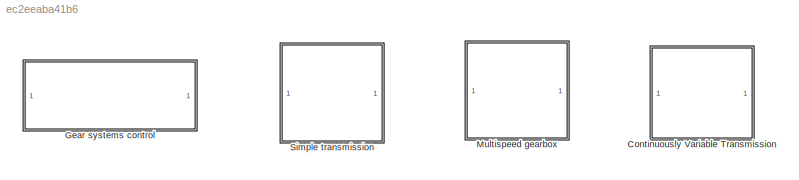
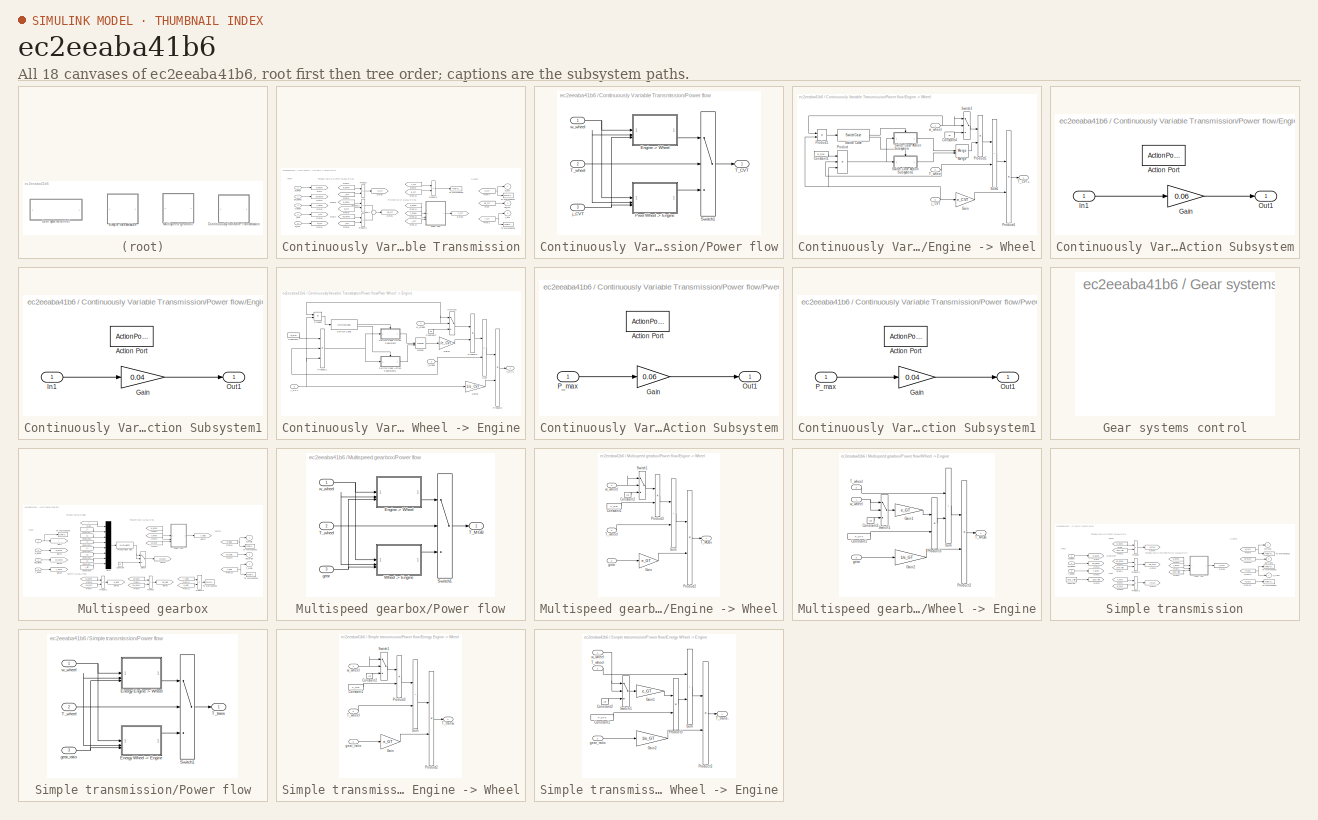
[diagram: thumbnail index - all 18 canvases of the model, root first then tree order]
MODEL slx_ec2eeaba41b6
KIND library
CONFIG AbsTol = auto
CONFIG EnableMultiTasking = off
CONFIG FixedStep = auto
CONFIG MaxStep = auto
CONFIG MinStep = auto
CONFIG RelTol = 1e-3
CONFIG SampleTimeConstraint = Unconstrained
CONFIG SolverName = VariableStepAuto
CONFIG StartTime = 0.0
CONFIG StopTime = 10.0
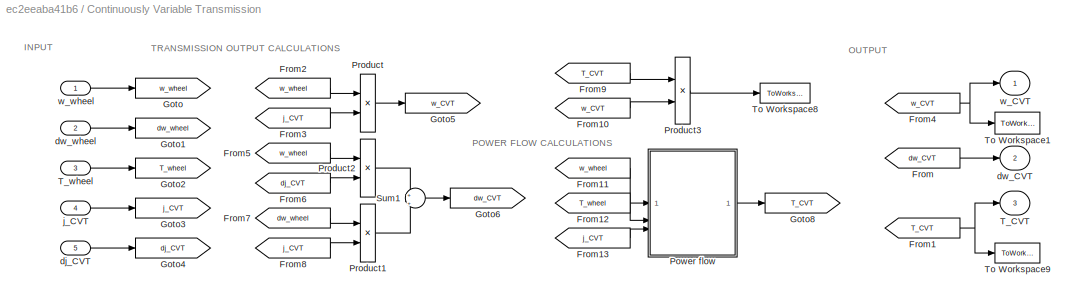
BLOCK [SubSystem] Continuously Variable Transmission
  Tag = cvt
BLOCK [From] Continuously Variable Transmission/From
  GotoTag = dw_CVT
BLOCK [From] Continuously Variable Transmission/From1
  GotoTag = T_CVT
BLOCK [From] Continuously Variable Transmission/From10
  GotoTag = w_CVT
BLOCK [From] Continuously Variable Transmission/From11
  GotoTag = w_wheel
BLOCK [From] Continuously Variable Transmission/From12
  GotoTag = T_wheel
BLOCK [From] Continuously Variable Transmission/From13
  GotoTag = j_CVT
BLOCK [From] Continuously Variable Transmission/From2
  GotoTag = w_wheel
BLOCK [From] Continuously Variable Transmission/From3
  GotoTag = j_CVT
BLOCK [From] Continuously Variable Transmission/From4
  GotoTag = w_CVT
BLOCK [From] Continuously Variable Transmission/From5
  GotoTag = w_wheel
BLOCK [From] Continuously Variable Transmission/From6
  GotoTag = dj_CVT
BLOCK [From] Continuously Variable Transmission/From7
  GotoTag = dw_wheel
BLOCK [From] Continuously Variable Transmission/From8
  GotoTag = j_CVT
BLOCK [From] Continuously Variable Transmission/From9
  GotoTag = T_CVT
BLOCK [Goto] Continuously Variable Transmission/Goto
  GotoTag = w_wheel
BLOCK [Goto] Continuously Variable Transmission/Goto1
  GotoTag = dw_wheel
BLOCK [Goto] Continuously Variable Transmission/Goto2
  GotoTag = T_wheel
BLOCK [Goto] Continuously Variable Transmission/Goto3
  GotoTag = j_CVT
BLOCK [Goto] Continuously Variable Transmission/Goto4
  GotoTag = dj_CVT
BLOCK [Goto] Continuously Variable Transmission/Goto5
  GotoTag = w_CVT
BLOCK [Goto] Continuously Variable Transmission/Goto6
  GotoTag = dw_CVT
BLOCK [Goto] Continuously Variable Transmission/Goto8
  GotoTag = T_CVT
BLOCK [SubSystem] Continuously Variable Transmission/Power flow
BLOCK [SubSystem] Continuously Variable Transmission/Power flow/Engine -> Wheel
BLOCK [Constant] Continuously Variable Transmission/Power flow/Engine -> Wheel/Constant1
  Value = w_max
BLOCK [Constant] Continuously Variable Transmission/Power flow/Engine -> Wheel/Constant4
  Value = inf
BLOCK [Gain] Continuously Variable Transmission/Power flow/Engine -> Wheel/Gain
  Gain = e_CVT
  OutDataTypeStr = Inherit: Same as input
  ParamDataTypeStr = Inherit: Same as input
  SaturateOnIntegerOverflow = on
BLOCK [Merge] Continuously Variable Transmission/Power flow/Engine -> Wheel/Merge
BLOCK [Product] Continuously Variable Transmission/Power flow/Engine -> Wheel/Product
  Inputs = **/
BLOCK [Product] Continuously Variable Transmission/Power flow/Engine -> Wheel/Product1
BLOCK [Product] Continuously Variable Transmission/Power flow/Engine -> Wheel/Product4
  InputSameDT = on
  Inputs = */
  OutDataTypeStr = Inherit: Same as first input
  RndMeth = Zero
  SaturateOnIntegerOverflow = on
BLOCK [Product] Continuously Variable Transmission/Power flow/Engine -> Wheel/Product5
  InputSameDT = on
  Inputs = /*
  OutDataTypeStr = Inherit: Same as first input
  RndMeth = Zero
  SaturateOnIntegerOverflow = on
BLOCK [Sum] Continuously Variable Transmission/Power flow/Engine -> Wheel/Sum1
  IconShape = rectangular
  InputSameDT = on
  OutDataTypeStr = Inherit: Same as first input
  SaturateOnIntegerOverflow = on
BLOCK [SwitchCase] Continuously Variable Transmission/Power flow/Engine -> Wheel/Switch Case
  CaseConditions = {floor(0.5*w_max)}
BLOCK [SubSystem] Continuously Variable Transmission/Power flow/Engine -> Wheel/Switch Case Action Subsystem
  TreatAsAtomicUnit = on
BLOCK [ActionPort] Continuously Variable Transmission/Power flow/Engine -> Wheel/Switch Case Action Subsystem/Action Port
BLOCK [Gain] Continuously Variable Transmission/Power flow/Engine -> Wheel/Switch Case Action Subsystem/Gain
  Gain = 0.06
BLOCK [Inport] Continuously Variable Transmission/Power flow/Engine -> Wheel/Switch Case Action Subsystem/In1
BLOCK [Outport] Continuously Variable Transmission/Power flow/Engine -> Wheel/Switch Case Action Subsystem/Out1
BLOCK [SubSystem] Continuously Variable Transmission/Power flow/Engine -> Wheel/Switch Case Action Subsystem1
  TreatAsAtomicUnit = on
BLOCK [ActionPort] Continuously Variable Transmission/Power flow/Engine -> Wheel/Switch Case Action Subsystem1/Action Port
BLOCK [Gain] Continuously Variable Transmission/Power flow/Engine -> Wheel/Switch Case Action Subsystem1/Gain
  Gain = 0.04
BLOCK [Inport] Continuously Variable Transmission/Power flow/Engine -> Wheel/Switch Case Action Subsystem1/In1
BLOCK [Outport] Continuously Variable Transmission/Power flow/Engine -> Wheel/Switch Case Action Subsystem1/Out1
BLOCK [Switch] Continuously Variable Transmission/Power flow/Engine -> Wheel/Switch2
  Threshold = w_wheel_min
BLOCK [Outport] Continuously Variable Transmission/Power flow/Engine -> Wheel/T_CVT+
  InitialOutput = 0
BLOCK [Inport] Continuously Variable Transmission/Power flow/Engine -> Wheel/T_wheel
  Port = 2
BLOCK [Inport] Continuously Variable Transmission/Power flow/Engine -> Wheel/j_CVT
  Port = 3
BLOCK [Inport] Continuously Variable Transmission/Power flow/Engine -> Wheel/w_wheel
BLOCK [SubSystem] Continuously Variable Transmission/Power flow/Pwer Wheel -> Engine
BLOCK [Constant] Continuously Variable Transmission/Power flow/Pwer Wheel -> Engine/Constant2
  Value = inf
BLOCK [Constant] Continuously Variable Transmission/Power flow/Pwer Wheel -> Engine/Constant3
  Value = w_max
BLOCK [Gain] Continuously Variable Transmission/Power flow/Pwer Wheel -> Engine/Gain1
  Gain = 1/e_CVT
  OutDataTypeStr = Inherit: Same as input
  ParamDataTypeStr = Inherit: Same as input
  SaturateOnIntegerOverflow = on
BLOCK [Gain] Continuously Variable Transmission/Power flow/Pwer Wheel -> Engine/Gain2
  Gain = 1/e_CVT
  OutDataTypeStr = Inherit: Same as input
  ParamDataTypeStr = Inherit: Same as input
  SaturateOnIntegerOverflow = on
BLOCK [Merge] Continuously Variable Transmission/Power flow/Pwer Wheel -> Engine/Merge
BLOCK [Product] Continuously Variable Transmission/Power flow/Pwer Wheel -> Engine/Product
BLOCK [Product] Continuously Variable Transmission/Power flow/Pwer Wheel -> Engine/Product1
  InputSameDT = on
  Inputs = **/
  OutDataTypeStr = Inherit: Same as first input
  RndMeth = Zero
  SaturateOnIntegerOverflow = on
BLOCK [Product] Continuously Variable Transmission/Power flow/Pwer Wheel -> Engine/Product2
  InputSameDT = on
  Inputs = */
  OutDataTypeStr = Inherit: Same as first input
  RndMeth = Zero
  SaturateOnIntegerOverflow = on
BLOCK [Product] Continuously Variable Transmission/Power flow/Pwer Wheel -> Engine/Product3
  InputSameDT = on
  Inputs = /*
  OutDataTypeStr = Inherit: Same as first input
  RndMeth = Zero
  SaturateOnIntegerOverflow = on
BLOCK [Sum] Continuously Variable Transmission/Power flow/Pwer Wheel -> Engine/Sum
  IconShape = rectangular
  InputSameDT = on
  Inputs = -+
  OutDataTypeStr = Inherit: Same as first input
  SaturateOnIntegerOverflow = on
BLOCK [SwitchCase] Continuously Variable Transmission/Power flow/Pwer Wheel -> Engine/Switch Case
  CaseConditions = {floor(0.5*w_max)}
BLOCK [SubSystem] Continuously Variable Transmission/Power flow/Pwer Wheel -> Engine/Switch Case Action Subsystem
  TreatAsAtomicUnit = on
BLOCK [ActionPort] Continuously Variable Transmission/Power flow/Pwer Wheel -> Engine/Switch Case Action Subsystem/Action Port
  ActionPortLabel = case [ 50 ]:
BLOCK [Gain] Continuously Variable Transmission/Power flow/Pwer Wheel -> Engine/Switch Case Action Subsystem/Gain
  Gain = 0.06
BLOCK [Outport] Continuously Variable Transmission/Power flow/Pwer Wheel -> Engine/Switch Case Action Subsystem/Out1
BLOCK [Inport] Continuously Variable Transmission/Power flow/Pwer Wheel -> Engine/Switch Case Action Subsystem/P_max
BLOCK [SubSystem] Continuously Variable Transmission/Power flow/Pwer Wheel -> Engine/Switch Case Action Subsystem1
  TreatAsAtomicUnit = on
BLOCK [ActionPort] Continuously Variable Transmission/Power flow/Pwer Wheel -> Engine/Switch Case Action Subsystem1/Action Port
BLOCK [Gain] Continuously Variable Transmission/Power flow/Pwer Wheel -> Engine/Switch Case Action Subsystem1/Gain
  Gain = 0.04
BLOCK [Outport] Continuously Variable Transmission/Power flow/Pwer Wheel -> Engine/Switch Case Action Subsystem1/Out1
BLOCK [Inport] Continuously Variable Transmission/Power flow/Pwer Wheel -> Engine/Switch Case Action Subsystem1/P_max
BLOCK [Switch] Continuously Variable Transmission/Power flow/Pwer Wheel -> Engine/Switch1
  Threshold = w_wheel_min
BLOCK [Outport] Continuously Variable Transmission/Power flow/Pwer Wheel -> Engine/T_CVT-
  InitialOutput = 0
BLOCK [Inport] Continuously Variable Transmission/Power flow/Pwer Wheel -> Engine/T_wheel
  Port = 2
BLOCK [Inport] Continuously Variable Transmission/Power flow/Pwer Wheel -> Engine/j_CVT
  Port = 3
BLOCK [Inport] Continuously Variable Transmission/Power flow/Pwer Wheel -> Engine/w_wheel
BLOCK [Switch] Continuously Variable Transmission/Power flow/Switch1
BLOCK [Outport] Continuously Variable Transmission/Power flow/T_CVT
  InitialOutput = 0
BLOCK [Inport] Continuously Variable Transmission/Power flow/T_wheel
  Port = 2
BLOCK [Inport] Continuously Variable Transmission/Power flow/j_CVT
  Port = 3
BLOCK [Inport] Continuously Variable Transmission/Power flow/w_wheel
BLOCK [Product] Continuously Variable Transmission/Product
  InputSameDT = on
  OutDataTypeStr = Inherit: Same as first input
  RndMeth = Zero
  SaturateOnIntegerOverflow = on
BLOCK [Product] Continuously Variable Transmission/Product1
  InputSameDT = on
  OutDataTypeStr = Inherit: Same as first input
  RndMeth = Zero
  SaturateOnIntegerOverflow = on
BLOCK [Product] Continuously Variable Transmission/Product2
  InputSameDT = on
  OutDataTypeStr = Inherit: Same as first input
  RndMeth = Zero
  SaturateOnIntegerOverflow = on
BLOCK [Product] Continuously Variable Transmission/Product3
  InputSameDT = on
  OutDataTypeStr = Inherit: Same as first input
  RndMeth = Zero
  SaturateOnIntegerOverflow = on
BLOCK [Sum] Continuously Variable Transmission/Sum1
  Inputs = +|+
BLOCK [Outport] Continuously Variable Transmission/T_CVT
  InitialOutput = 0
  Port = 3
BLOCK [Inport] Continuously Variable Transmission/T_wheel
  Port = 3
BLOCK [ToWorkspace] Continuously Variable Transmission/To Workspace1
  MaxDataPoints = inf
  NameLocation = top
  SampleTime = -1
  VariableName = w_CVT
BLOCK [ToWorkspace] Continuously Variable Transmission/To Workspace8
  MaxDataPoints = inf
  NameLocation = top
  SampleTime = -1
  VariableName = P_CVT
BLOCK [ToWorkspace] Continuously Variable Transmission/To Workspace9
  MaxDataPoints = inf
  NameLocation = top
  SampleTime = -1
  VariableName = T_CVT
BLOCK [Inport] Continuously Variable Transmission/dj_CVT
  Port = 5
BLOCK [Outport] Continuously Variable Transmission/dw_CVT
  InitialOutput = 0
  Port = 2
BLOCK [Inport] Continuously Variable Transmission/dw_wheel
  Port = 2
BLOCK [Inport] Continuously Variable Transmission/j_CVT
  Port = 4
BLOCK [Outport] Continuously Variable Transmission/w_CVT
  InitialOutput = 0
BLOCK [Inport] Continuously Variable Transmission/w_wheel
BLOCK [SubSystem] Gear systems control
  OpenFcn = GearSystemsControl
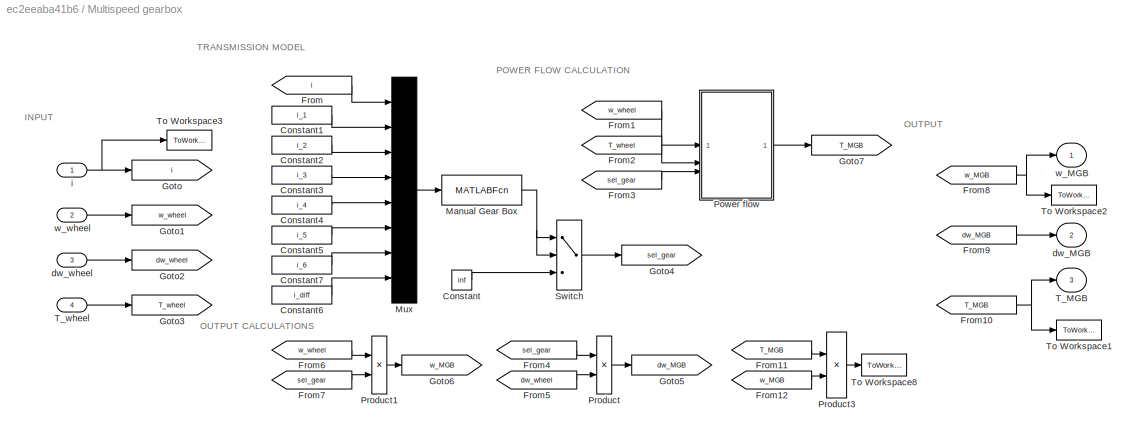
BLOCK [SubSystem] Multispeed gearbox
  Tag = transmission
BLOCK [Constant] Multispeed gearbox/Constant
  Value = inf
BLOCK [Constant] Multispeed gearbox/Constant1
  Value = i_1
BLOCK [Constant] Multispeed gearbox/Constant2
  Value = i_2
BLOCK [Constant] Multispeed gearbox/Constant3
  Value = i_3
BLOCK [Constant] Multispeed gearbox/Constant4
  Value = i_4
BLOCK [Constant] Multispeed gearbox/Constant5
  Value = i_5
BLOCK [Constant] Multispeed gearbox/Constant6
  Value = i_diff
BLOCK [Constant] Multispeed gearbox/Constant7
  Value = i_6
BLOCK [From] Multispeed gearbox/From
  GotoTag = i
BLOCK [From] Multispeed gearbox/From1
  GotoTag = w_wheel
BLOCK [From] Multispeed gearbox/From10
  GotoTag = T_MGB
BLOCK [From] Multispeed gearbox/From11
  GotoTag = T_MGB
BLOCK [From] Multispeed gearbox/From12
  GotoTag = w_MGB
BLOCK [From] Multispeed gearbox/From2
  GotoTag = T_wheel
BLOCK [From] Multispeed gearbox/From3
  GotoTag = sel_gear
BLOCK [From] Multispeed gearbox/From4
  GotoTag = sel_gear
BLOCK [From] Multispeed gearbox/From5
  GotoTag = dw_wheel
BLOCK [From] Multispeed gearbox/From6
  GotoTag = w_wheel
BLOCK [From] Multispeed gearbox/From7
  GotoTag = sel_gear
BLOCK [From] Multispeed gearbox/From8
  GotoTag = w_MGB
BLOCK [From] Multispeed gearbox/From9
  GotoTag = dw_MGB
BLOCK [Goto] Multispeed gearbox/Goto
  GotoTag = i
BLOCK [Goto] Multispeed gearbox/Goto1
  GotoTag = w_wheel
BLOCK [Goto] Multispeed gearbox/Goto2
  GotoTag = dw_wheel
BLOCK [Goto] Multispeed gearbox/Goto3
  GotoTag = T_wheel
BLOCK [Goto] Multispeed gearbox/Goto4
  GotoTag = sel_gear
BLOCK [Goto] Multispeed gearbox/Goto5
  GotoTag = dw_MGB
BLOCK [Goto] Multispeed gearbox/Goto6
  GotoTag = w_MGB
BLOCK [Goto] Multispeed gearbox/Goto7
  GotoTag = T_MGB
BLOCK [MATLABFcn] Multispeed gearbox/Manual Gear Box
  MATLABFcn = manual_gearbox(u)
  OutputDimensions = 1
BLOCK [Mux] Multispeed gearbox/Mux
  Inputs = 8
BLOCK [SubSystem] Multispeed gearbox/Power flow
BLOCK [SubSystem] Multispeed gearbox/Power flow/Engine -> Wheel
BLOCK [Constant] Multispeed gearbox/Power flow/Engine -> Wheel/Constant1
  Value = P_GT0
BLOCK [Constant] Multispeed gearbox/Power flow/Engine -> Wheel/Constant2
  Value = inf
BLOCK [Gain] Multispeed gearbox/Power flow/Engine -> Wheel/Gain
  Gain = e_GT
  OutDataTypeStr = Inherit: Same as input
  ParamDataTypeStr = Inherit: Same as input
  SaturateOnIntegerOverflow = on
BLOCK [Product] Multispeed gearbox/Power flow/Engine -> Wheel/Product2
  InputSameDT = on
  Inputs = */
  OutDataTypeStr = Inherit: Same as first input
  RndMeth = Zero
  SaturateOnIntegerOverflow = on
BLOCK [Product] Multispeed gearbox/Power flow/Engine -> Wheel/Product3
  InputSameDT = on
  Inputs = /*
  OutDataTypeStr = Inherit: Same as first input
  RndMeth = Zero
  SaturateOnIntegerOverflow = on
BLOCK [Sum] Multispeed gearbox/Power flow/Engine -> Wheel/Sum
  IconShape = rectangular
  InputSameDT = on
  OutDataTypeStr = Inherit: Same as first input
  SaturateOnIntegerOverflow = on
BLOCK [Switch] Multispeed gearbox/Power flow/Engine -> Wheel/Switch1
  Threshold = w_wheel_min
BLOCK [Outport] Multispeed gearbox/Power flow/Engine -> Wheel/T_MGB+
  InitialOutput = 0
BLOCK [Inport] Multispeed gearbox/Power flow/Engine -> Wheel/T_wheel
  Port = 2
BLOCK [Inport] Multispeed gearbox/Power flow/Engine -> Wheel/gear
  Port = 3
BLOCK [Inport] Multispeed gearbox/Power flow/Engine -> Wheel/w_wheel
BLOCK [Switch] Multispeed gearbox/Power flow/Switch1
BLOCK [Outport] Multispeed gearbox/Power flow/T_MGB
  InitialOutput = 0
BLOCK [Inport] Multispeed gearbox/Power flow/T_wheel
  Port = 2
BLOCK [SubSystem] Multispeed gearbox/Power flow/Wheel -> Engine
BLOCK [Constant] Multispeed gearbox/Power flow/Wheel -> Engine/Constant1
  Value = P_GT0
BLOCK [Constant] Multispeed gearbox/Power flow/Wheel -> Engine/Constant2
  Value = inf
BLOCK [Gain] Multispeed gearbox/Power flow/Wheel -> Engine/Gain1
  Gain = e_GT
  OutDataTypeStr = Inherit: Same as input
  ParamDataTypeStr = Inherit: Same as input
  SaturateOnIntegerOverflow = on
BLOCK [Gain] Multispeed gearbox/Power flow/Wheel -> Engine/Gain2
  Gain = 1/e_GT
  OutDataTypeStr = Inherit: Same as input
  ParamDataTypeStr = Inherit: Same as input
  SaturateOnIntegerOverflow = on
BLOCK [Product] Multispeed gearbox/Power flow/Wheel -> Engine/Product2
  InputSameDT = on
  Inputs = */
  OutDataTypeStr = Inherit: Same as first input
  RndMeth = Zero
  SaturateOnIntegerOverflow = on
BLOCK [Product] Multispeed gearbox/Power flow/Wheel -> Engine/Product3
  InputSameDT = on
  Inputs = /*
  OutDataTypeStr = Inherit: Same as first input
  RndMeth = Zero
  SaturateOnIntegerOverflow = on
BLOCK [Sum] Multispeed gearbox/Power flow/Wheel -> Engine/Sum
  IconShape = rectangular
  InputSameDT = on
  OutDataTypeStr = Inherit: Same as first input
  SaturateOnIntegerOverflow = on
BLOCK [Switch] Multispeed gearbox/Power flow/Wheel -> Engine/Switch1
  Threshold = w_wheel_min
BLOCK [Outport] Multispeed gearbox/Power flow/Wheel -> Engine/T_MGB-
  InitialOutput = 0
BLOCK [Inport] Multispeed gearbox/Power flow/Wheel -> Engine/T_wheel
  Port = 2
BLOCK [Inport] Multispeed gearbox/Power flow/Wheel -> Engine/gear
  Port = 3
BLOCK [Inport] Multispeed gearbox/Power flow/Wheel -> Engine/w_wheel
BLOCK [Inport] Multispeed gearbox/Power flow/gear
  Port = 3
BLOCK [Inport] Multispeed gearbox/Power flow/w_wheel
BLOCK [Product] Multispeed gearbox/Product
  InputSameDT = on
  OutDataTypeStr = Inherit: Same as first input
  RndMeth = Zero
  SaturateOnIntegerOverflow = on
BLOCK [Product] Multispeed gearbox/Product1
  InputSameDT = on
  OutDataTypeStr = Inherit: Same as first input
  RndMeth = Zero
  SaturateOnIntegerOverflow = on
BLOCK [Product] Multispeed gearbox/Product3
  InputSameDT = on
  OutDataTypeStr = Inherit: Same as first input
  RndMeth = Zero
  SaturateOnIntegerOverflow = on
BLOCK [Switch] Multispeed gearbox/Switch
  Threshold = eps
BLOCK [Outport] Multispeed gearbox/T_MGB
  InitialOutput = 0
  Port = 3
BLOCK [Inport] Multispeed gearbox/T_wheel
  Port = 4
BLOCK [ToWorkspace] Multispeed gearbox/To Workspace1
  MaxDataPoints = inf
  NameLocation = top
  SampleTime = -1
  VariableName = T_MGB
BLOCK [ToWorkspace] Multispeed gearbox/To Workspace2
  MaxDataPoints = inf
  NameLocation = top
  SampleTime = -1
  VariableName = w_MGB
BLOCK [ToWorkspace] Multispeed gearbox/To Workspace3
  MaxDataPoints = inf
  NameLocation = top
  SampleTime = -1
  VariableName = i
BLOCK [ToWorkspace] Multispeed gearbox/To Workspace8
  MaxDataPoints = inf
  NameLocation = top
  SampleTime = -1
  VariableName = P_MGB
BLOCK [Outport] Multispeed gearbox/dw_MGB
  InitialOutput = 0
  Port = 2
BLOCK [Inport] Multispeed gearbox/dw_wheel
  Port = 3
BLOCK [Inport] Multispeed gearbox/i
BLOCK [Outport] Multispeed gearbox/w_MGB
  InitialOutput = 0
BLOCK [Inport] Multispeed gearbox/w_wheel
  Port = 2
BLOCK [SubSystem] Simple transmission
BLOCK [Constant] Simple transmission/Constant
  Value = gear_ratio
BLOCK [From] Simple transmission/From
  GotoTag = w_wheel
BLOCK [From] Simple transmission/From1
  GotoTag = T_wheel
BLOCK [From] Simple transmission/From10
  GotoTag = P_trans
BLOCK [From] Simple transmission/From11
  GotoTag = T_trans
BLOCK [From] Simple transmission/From12
  GotoTag = dw_trans
BLOCK [From] Simple transmission/From2
  GotoTag = gearratio
BLOCK [From] Simple transmission/From3
  GotoTag = dw_wheel
BLOCK [From] Simple transmission/From4
  GotoTag = gearratio
BLOCK [From] Simple transmission/From5
  GotoTag = w_wheel
BLOCK [From] Simple transmission/From6
  GotoTag = gearratio
BLOCK [From] Simple transmission/From7
  GotoTag = T_trans
BLOCK [From] Simple transmission/From8
  GotoTag = w_trans
BLOCK [From] Simple transmission/From9
  GotoTag = w_trans
BLOCK [Goto] Simple transmission/Goto
  GotoTag = w_wheel
BLOCK [Goto] Simple transmission/Goto1
  GotoTag = dw_wheel
BLOCK [Goto] Simple transmission/Goto2
  GotoTag = T_wheel
BLOCK [Goto] Simple transmission/Goto3
  GotoTag = gearratio
BLOCK [Goto] Simple transmission/Goto4
  GotoTag = w_trans
BLOCK [Goto] Simple transmission/Goto5
  GotoTag = dw_trans
BLOCK [Goto] Simple transmission/Goto6
  GotoTag = T_trans
BLOCK [Goto] Simple transmission/Goto7
  GotoTag = P_trans
BLOCK [SubSystem] Simple transmission/Power flow
BLOCK [SubSystem] Simple transmission/Power flow/Energy Engine -> Wheel
BLOCK [Constant] Simple transmission/Power flow/Energy Engine -> Wheel/Constant1
  Value = P_GT0
BLOCK [Constant] Simple transmission/Power flow/Energy Engine -> Wheel/Constant2
  Value = inf
BLOCK [Gain] Simple transmission/Power flow/Energy Engine -> Wheel/Gain
  Gain = e_GT
  OutDataTypeStr = Inherit: Same as input
  ParamDataTypeStr = Inherit: Same as input
  SaturateOnIntegerOverflow = on
BLOCK [Product] Simple transmission/Power flow/Energy Engine -> Wheel/Product2
  InputSameDT = on
  Inputs = */
  OutDataTypeStr = Inherit: Same as first input
  RndMeth = Zero
  SaturateOnIntegerOverflow = on
BLOCK [Product] Simple transmission/Power flow/Energy Engine -> Wheel/Product3
  InputSameDT = on
  Inputs = /*
  OutDataTypeStr = Inherit: Same as first input
  RndMeth = Zero
  SaturateOnIntegerOverflow = on
BLOCK [Sum] Simple transmission/Power flow/Energy Engine -> Wheel/Sum
  IconShape = rectangular
  InputSameDT = on
  OutDataTypeStr = Inherit: Same as first input
  SaturateOnIntegerOverflow = on
BLOCK [Switch] Simple transmission/Power flow/Energy Engine -> Wheel/Switch1
  Threshold = w_wheel_min
BLOCK [Outport] Simple transmission/Power flow/Energy Engine -> Wheel/T_trans+
  InitialOutput = 0
BLOCK [Inport] Simple transmission/Power flow/Energy Engine -> Wheel/T_wheel
  Port = 2
BLOCK [Inport] Simple transmission/Power flow/Energy Engine -> Wheel/gear_ratio
  Port = 3
BLOCK [Inport] Simple transmission/Power flow/Energy Engine -> Wheel/w_wheel
BLOCK [SubSystem] Simple transmission/Power flow/Energy Wheel -> Engine
BLOCK [Constant] Simple transmission/Power flow/Energy Wheel -> Engine/Constant1
  Value = P_GT0
BLOCK [Constant] Simple transmission/Power flow/Energy Wheel -> Engine/Constant2
  Value = inf
BLOCK [Gain] Simple transmission/Power flow/Energy Wheel -> Engine/Gain1
  Gain = e_GT
  OutDataTypeStr = Inherit: Same as input
  ParamDataTypeStr = Inherit: Same as input
  SaturateOnIntegerOverflow = on
BLOCK [Gain] Simple transmission/Power flow/Energy Wheel -> Engine/Gain2
  Gain = 1/e_GT
  OutDataTypeStr = Inherit: Same as input
  ParamDataTypeStr = Inherit: Same as input
  SaturateOnIntegerOverflow = on
BLOCK [Product] Simple transmission/Power flow/Energy Wheel -> Engine/Product2
  InputSameDT = on
  Inputs = */
  OutDataTypeStr = Inherit: Same as first input
  RndMeth = Zero
  SaturateOnIntegerOverflow = on
BLOCK [Product] Simple transmission/Power flow/Energy Wheel -> Engine/Product3
  InputSameDT = on
  Inputs = /*
  OutDataTypeStr = Inherit: Same as first input
  RndMeth = Zero
  SaturateOnIntegerOverflow = on
BLOCK [Sum] Simple transmission/Power flow/Energy Wheel -> Engine/Sum
  IconShape = rectangular
  InputSameDT = on
  OutDataTypeStr = Inherit: Same as first input
  SaturateOnIntegerOverflow = on
BLOCK [Switch] Simple transmission/Power flow/Energy Wheel -> Engine/Switch1
  Threshold = w_wheel_min
BLOCK [Outport] Simple transmission/Power flow/Energy Wheel -> Engine/T_trans-
  InitialOutput = 0
BLOCK [Inport] Simple transmission/Power flow/Energy Wheel -> Engine/T_wheel
  Port = 2
BLOCK [Inport] Simple transmission/Power flow/Energy Wheel -> Engine/gear_ratio
  Port = 3
BLOCK [Inport] Simple transmission/Power flow/Energy Wheel -> Engine/w_wheel
BLOCK [Switch] Simple transmission/Power flow/Switch1
BLOCK [Outport] Simple transmission/Power flow/T_trans
  InitialOutput = 0
BLOCK [Inport] Simple transmission/Power flow/T_wheel
  Port = 2
BLOCK [Inport] Simple transmission/Power flow/gear_ratio
  Port = 3
BLOCK [Inport] Simple transmission/Power flow/w_wheel
BLOCK [Product] Simple transmission/Product
  InputSameDT = on
  OutDataTypeStr = Inherit: Same as first input
  RndMeth = Zero
  SaturateOnIntegerOverflow = on
BLOCK [Product] Simple transmission/Product1
  InputSameDT = on
  OutDataTypeStr = Inherit: Same as first input
  RndMeth = Zero
  SaturateOnIntegerOverflow = on
BLOCK [Product] Simple transmission/Product2
  InputSameDT = on
  OutDataTypeStr = Inherit: Same as first input
  RndMeth = Zero
  SaturateOnIntegerOverflow = on
BLOCK [Outport] Simple transmission/T_trans
  InitialOutput = 0
  Port = 3
BLOCK [Inport] Simple transmission/T_wheel
  Port = 3
BLOCK [ToWorkspace] Simple transmission/To Workspace1
  MaxDataPoints = inf
  NameLocation = top
  SampleTime = -1
  VariableName = w_trans
BLOCK [ToWorkspace] Simple transmission/To Workspace2
  MaxDataPoints = inf
  NameLocation = top
  SampleTime = -1
  VariableName = T_trans
BLOCK [ToWorkspace] Simple transmission/To Workspace3
  MaxDataPoints = inf
  NameLocation = top
  SampleTime = -1
  VariableName = P_trans
BLOCK [Outport] Simple transmission/dw_trans
  InitialOutput = 0
  Port = 2
BLOCK [Inport] Simple transmission/dw_wheel
  Port = 2
BLOCK [Outport] Simple transmission/w_trans
  InitialOutput = 0
BLOCK [Inport] Simple transmission/w_wheel
ANNOTATION Continuously Variable Transmission: INPUT
ANNOTATION Continuously Variable Transmission: OUTPUT
ANNOTATION Continuously Variable Transmission: POWER FLOW CALCULATIONS
ANNOTATION Continuously Variable Transmission: TRANSMISSION OUTPUT CALCULATIONS
ANNOTATION Multispeed gearbox: INPUT
ANNOTATION Multispeed gearbox: OUTPUT
ANNOTATION Multispeed gearbox: OUTPUT CALCULATIONS
ANNOTATION Multispeed gearbox: POWER FLOW CALCULATION
ANNOTATION Multispeed gearbox: TRANSMISSION MODEL
ANNOTATION Simple transmission: Acceleration
ANNOTATION Simple transmission: INPUT
ANNOTATION Simple transmission: OUTPUT
ANNOTATION Simple transmission: Power
ANNOTATION Simple transmission: Speed
ANNOTATION Simple transmission: TRANSMISSION OUTPUT CALCULATION
ANNOTATION Simple transmission: TRANSMISSION POWER FLOW CALCULATION
LINE Multispeed gearbox/Constant1:1 -> Multispeed gearbox/Mux:2
LINE Multispeed gearbox/Constant2:1 -> Multispeed gearbox/Mux:3
LINE Multispeed gearbox/Constant3:1 -> Multispeed gearbox/Mux:4
LINE Multispeed gearbox/Constant4:1 -> Multispeed gearbox/Mux:5
LINE Multispeed gearbox/Constant5:1 -> Multispeed gearbox/Mux:6
LINE Multispeed gearbox/Constant6:1 -> Multispeed gearbox/Mux:8
LINE Multispeed gearbox/Constant7:1 -> Multispeed gearbox/Mux:7
LINE Multispeed gearbox/Constant:1 -> Multispeed gearbox/Switch:3
NET Multispeed gearbox/From10:1 -> Multispeed gearbox/T_MGB:1, Multispeed gearbox/To Workspace1:1
LINE Multispeed gearbox/From11:1 -> Multispeed gearbox/Product3:1
LINE Multispeed gearbox/From12:1 -> Multispeed gearbox/Product3:2
LINE Multispeed gearbox/From1:1 -> Multispeed gearbox/Power flow:1
LINE Multispeed gearbox/From2:1 -> Multispeed gearbox/Power flow:2
LINE Multispeed gearbox/From3:1 -> Multispeed gearbox/Power flow:3
LINE Multispeed gearbox/From4:1 -> Multispeed gearbox/Product:1
LINE Multispeed gearbox/From5:1 -> Multispeed gearbox/Product:2
LINE Multispeed gearbox/From6:1 -> Multispeed gearbox/Product1:1
LINE Multispeed gearbox/From7:1 -> Multispeed gearbox/Product1:2
NET Multispeed gearbox/From8:1 -> Multispeed gearbox/To Workspace2:1, Multispeed gearbox/w_MGB:1
LINE Multispeed gearbox/From9:1 -> Multispeed gearbox/dw_MGB:1
LINE Multispeed gearbox/From:1 -> Multispeed gearbox/Mux:1
NET Multispeed gearbox/Manual Gear Box:1 -> Multispeed gearbox/Switch:1, Multispeed gearbox/Switch:2
LINE Multispeed gearbox/Mux:1 -> Multispeed gearbox/Manual Gear Box:1
LINE Multispeed gearbox/Power flow/Engine -> Wheel/Constant1:1 -> Multispeed gearbox/Power flow/Engine -> Wheel/Product3:2
LINE Multispeed gearbox/Power flow/Engine -> Wheel/Constant2:1 -> Multispeed gearbox/Power flow/Engine -> Wheel/Switch1:3
LINE Multispeed gearbox/Power flow/Engine -> Wheel/Gain:1 -> Multispeed gearbox/Power flow/Engine -> Wheel/Product2:2
LINE Multispeed gearbox/Power flow/Engine -> Wheel/Product2:1 -> Multispeed gearbox/Power flow/Engine -> Wheel/T_MGB+:1
LINE Multispeed gearbox/Power flow/Engine -> Wheel/Product3:1 -> Multispeed gearbox/Power flow/Engine -> Wheel/Sum:1
LINE Multispeed gearbox/Power flow/Engine -> Wheel/Sum:1 -> Multispeed gearbox/Power flow/Engine -> Wheel/Product2:1
LINE Multispeed gearbox/Power flow/Engine -> Wheel/Switch1:1 -> Multispeed gearbox/Power flow/Engine -> Wheel/Product3:1
LINE Multispeed gearbox/Power flow/Engine -> Wheel/T_wheel:1 -> Multispeed gearbox/Power flow/Engine -> Wheel/Sum:2
LINE Multispeed gearbox/Power flow/Engine -> Wheel/gear:1 -> Multispeed gearbox/Power flow/Engine -> Wheel/Gain:1
NET Multispeed gearbox/Power flow/Engine -> Wheel/w_wheel:1 -> Multispeed gearbox/Power flow/Engine -> Wheel/Switch1:1, Multispeed gearbox/Power flow/Engine -> Wheel/Switch1:2
LINE Multispeed gearbox/Power flow/Engine -> Wheel:1 -> Multispeed gearbox/Power flow/Switch1:1
LINE Multispeed gearbox/Power flow/Switch1:1 -> Multispeed gearbox/Power flow/T_MGB:1
NET Multispeed gearbox/Power flow/T_wheel:1 -> Multispeed gearbox/Power flow/Engine -> Wheel:2, Multispeed gearbox/Power flow/Switch1:2, Multispeed gearbox/Power flow/Wheel -> Engine:2
LINE Multispeed gearbox/Power flow/Wheel -> Engine/Constant1:1 -> Multispeed gearbox/Power flow/Wheel -> Engine/Product3:2
LINE Multispeed gearbox/Power flow/Wheel -> Engine/Constant2:1 -> Multispeed gearbox/Power flow/Wheel -> Engine/Switch1:3
LINE Multispeed gearbox/Power flow/Wheel -> Engine/Gain1:1 -> Multispeed gearbox/Power flow/Wheel -> Engine/Product3:1
LINE Multispeed gearbox/Power flow/Wheel -> Engine/Gain2:1 -> Multispeed gearbox/Power flow/Wheel -> Engine/Product2:2
LINE Multispeed gearbox/Power flow/Wheel -> Engine/Product2:1 -> Multispeed gearbox/Power flow/Wheel -> Engine/T_MGB-:1
LINE Multispeed gearbox/Power flow/Wheel -> Engine/Product3:1 -> Multispeed gearbox/Power flow/Wheel -> Engine/Sum:2
LINE Multispeed gearbox/Power flow/Wheel -> Engine/Sum:1 -> Multispeed gearbox/Power flow/Wheel -> Engine/Product2:1
LINE Multispeed gearbox/Power flow/Wheel -> Engine/Switch1:1 -> Multispeed gearbox/Power flow/Wheel -> Engine/Gain1:1
LINE Multispeed gearbox/Power flow/Wheel -> Engine/T_wheel:1 -> Multispeed gearbox/Power flow/Wheel -> Engine/Sum:1
LINE Multispeed gearbox/Power flow/Wheel -> Engine/gear:1 -> Multispeed gearbox/Power flow/Wheel -> Engine/Gain2:1
NET Multispeed gearbox/Power flow/Wheel -> Engine/w_wheel:1 -> Multispeed gearbox/Power flow/Wheel -> Engine/Switch1:1, Multispeed gearbox/Power flow/Wheel -> Engine/Switch1:2
LINE Multispeed gearbox/Power flow/Wheel -> Engine:1 -> Multispeed gearbox/Power flow/Switch1:3
NET Multispeed gearbox/Power flow/gear:1 -> Multispeed gearbox/Power flow/Engine -> Wheel:3, Multispeed gearbox/Power flow/Wheel -> Engine:3
NET Multispeed gearbox/Power flow/w_wheel:1 -> Multispeed gearbox/Power flow/Engine -> Wheel:1, Multispeed gearbox/Power flow/Wheel -> Engine:1
LINE Multispeed gearbox/Power flow:1 -> Multispeed gearbox/Goto7:1
LINE Multispeed gearbox/Product1:1 -> Multispeed gearbox/Goto6:1
LINE Multispeed gearbox/Product3:1 -> Multispeed gearbox/To Workspace8:1
LINE Multispeed gearbox/Product:1 -> Multispeed gearbox/Goto5:1
LINE Multispeed gearbox/Switch:1 -> Multispeed gearbox/Goto4:1
LINE Multispeed gearbox/T_wheel:1 -> Multispeed gearbox/Goto3:1
LINE Multispeed gearbox/dw_wheel:1 -> Multispeed gearbox/Goto2:1
NET Multispeed gearbox/i:1 -> Multispeed gearbox/Goto:1, Multispeed gearbox/To Workspace3:1
LINE Multispeed gearbox/w_wheel:1 -> Multispeed gearbox/Goto1:1
LINE Simple transmission/Constant:1 -> Simple transmission/Goto3:1
LINE Simple transmission/From10:1 -> Simple transmission/To Workspace3:1
NET Simple transmission/From11:1 -> Simple transmission/T_trans:1, Simple transmission/To Workspace2:1
LINE Simple transmission/From12:1 -> Simple transmission/dw_trans:1
LINE Simple transmission/From1:1 -> Simple transmission/Power flow:2
LINE Simple transmission/From2:1 -> Simple transmission/Product:2
LINE Simple transmission/From3:1 -> Simple transmission/Product1:1
LINE Simple transmission/From4:1 -> Simple transmission/Product1:2
LINE Simple transmission/From5:1 -> Simple transmission/Power flow:1
LINE Simple transmission/From6:1 -> Simple transmission/Power flow:3
LINE Simple transmission/From7:1 -> Simple transmission/Product2:1
LINE Simple transmission/From8:1 -> Simple transmission/Product2:2
NET Simple transmission/From9:1 -> Simple transmission/To Workspace1:1, Simple transmission/w_trans:1
LINE Simple transmission/From:1 -> Simple transmission/Product:1
LINE Simple transmission/Power flow/Energy Engine -> Wheel/Constant1:1 -> Simple transmission/Power flow/Energy Engine -> Wheel/Product3:2
LINE Simple transmission/Power flow/Energy Engine -> Wheel/Constant2:1 -> Simple transmission/Power flow/Energy Engine -> Wheel/Switch1:3
LINE Simple transmission/Power flow/Energy Engine -> Wheel/Gain:1 -> Simple transmission/Power flow/Energy Engine -> Wheel/Product2:2
LINE Simple transmission/Power flow/Energy Engine -> Wheel/Product2:1 -> Simple transmission/Power flow/Energy Engine -> Wheel/T_trans+:1
LINE Simple transmission/Power flow/Energy Engine -> Wheel/Product3:1 -> Simple transmission/Power flow/Energy Engine -> Wheel/Sum:1
LINE Simple transmission/Power flow/Energy Engine -> Wheel/Sum:1 -> Simple transmission/Power flow/Energy Engine -> Wheel/Product2:1
LINE Simple transmission/Power flow/Energy Engine -> Wheel/Switch1:1 -> Simple transmission/Power flow/Energy Engine -> Wheel/Product3:1
LINE Simple transmission/Power flow/Energy Engine -> Wheel/T_wheel:1 -> Simple transmission/Power flow/Energy Engine -> Wheel/Sum:2
LINE Simple transmission/Power flow/Energy Engine -> Wheel/gear_ratio:1 -> Simple transmission/Power flow/Energy Engine -> Wheel/Gain:1
NET Simple transmission/Power flow/Energy Engine -> Wheel/w_wheel:1 -> Simple transmission/Power flow/Energy Engine -> Wheel/Switch1:1, Simple transmission/Power flow/Energy Engine -> Wheel/Switch1:2
LINE Simple transmission/Power flow/Energy Engine -> Wheel:1 -> Simple transmission/Power flow/Switch1:1
LINE Simple transmission/Power flow/Energy Wheel -> Engine/Constant1:1 -> Simple transmission/Power flow/Energy Wheel -> Engine/Product3:2
LINE Simple transmission/Power flow/Energy Wheel -> Engine/Constant2:1 -> Simple transmission/Power flow/Energy Wheel -> Engine/Switch1:3
LINE Simple transmission/Power flow/Energy Wheel -> Engine/Gain1:1 -> Simple transmission/Power flow/Energy Wheel -> Engine/Product3:1
LINE Simple transmission/Power flow/Energy Wheel -> Engine/Gain2:1 -> Simple transmission/Power flow/Energy Wheel -> Engine/Product2:2
LINE Simple transmission/Power flow/Energy Wheel -> Engine/Product2:1 -> Simple transmission/Power flow/Energy Wheel -> Engine/T_trans-:1
LINE Simple transmission/Power flow/Energy Wheel -> Engine/Product3:1 -> Simple transmission/Power flow/Energy Wheel -> Engine/Sum:2
LINE Simple transmission/Power flow/Energy Wheel -> Engine/Sum:1 -> Simple transmission/Power flow/Energy Wheel -> Engine/Product2:1
LINE Simple transmission/Power flow/Energy Wheel -> Engine/Switch1:1 -> Simple transmission/Power flow/Energy Wheel -> Engine/Gain1:1
LINE Simple transmission/Power flow/Energy Wheel -> Engine/T_wheel:1 -> Simple transmission/Power flow/Energy Wheel -> Engine/Sum:1
LINE Simple transmission/Power flow/Energy Wheel -> Engine/gear_ratio:1 -> Simple transmission/Power flow/Energy Wheel -> Engine/Gain2:1
NET Simple transmission/Power flow/Energy Wheel -> Engine/w_wheel:1 -> Simple transmission/Power flow/Energy Wheel -> Engine/Switch1:1, Simple transmission/Power flow/Energy Wheel -> Engine/Switch1:2
LINE Simple transmission/Power flow/Energy Wheel -> Engine:1 -> Simple transmission/Power flow/Switch1:3
LINE Simple transmission/Power flow/Switch1:1 -> Simple transmission/Power flow/T_trans:1
NET Simple transmission/Power flow/T_wheel:1 -> Simple transmission/Power flow/Energy Engine -> Wheel:2, Simple transmission/Power flow/Energy Wheel -> Engine:2, Simple transmission/Power flow/Switch1:2
NET Simple transmission/Power flow/gear_ratio:1 -> Simple transmission/Power flow/Energy Engine -> Wheel:3, Simple transmission/Power flow/Energy Wheel -> Engine:3
NET Simple transmission/Power flow/w_wheel:1 -> Simple transmission/Power flow/Energy Engine -> Wheel:1, Simple transmission/Power flow/Energy Wheel -> Engine:1
LINE Simple transmission/Power flow:1 -> Simple transmission/Goto6:1
LINE Simple transmission/Product1:1 -> Simple transmission/Goto5:1
LINE Simple transmission/Product2:1 -> Simple transmission/Goto7:1
LINE Simple transmission/Product:1 -> Simple transmission/Goto4:1
LINE Simple transmission/T_wheel:1 -> Simple transmission/Goto2:1
LINE Simple transmission/dw_wheel:1 -> Simple transmission/Goto1:1
LINE Simple transmission/w_wheel:1 -> Simple transmission/Goto:1
note: NET lines group one-source signal fan-out (src -> all destinations, sorted); 1:1 wires keep LINE
